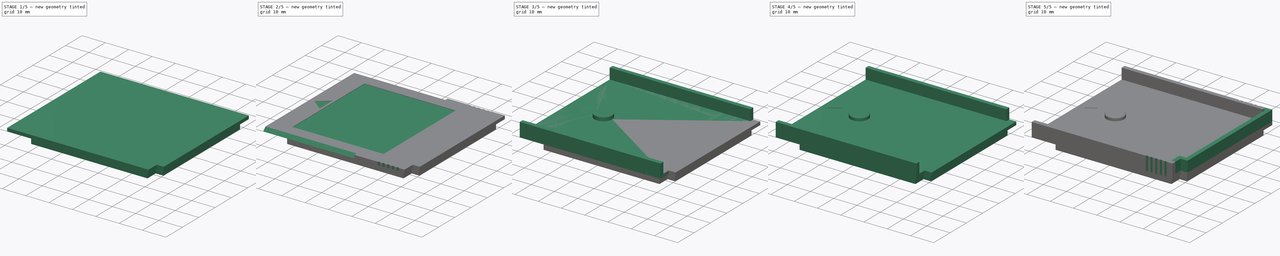
[diagram: build sequence overview — one tinted view per stage of 5, left to right]
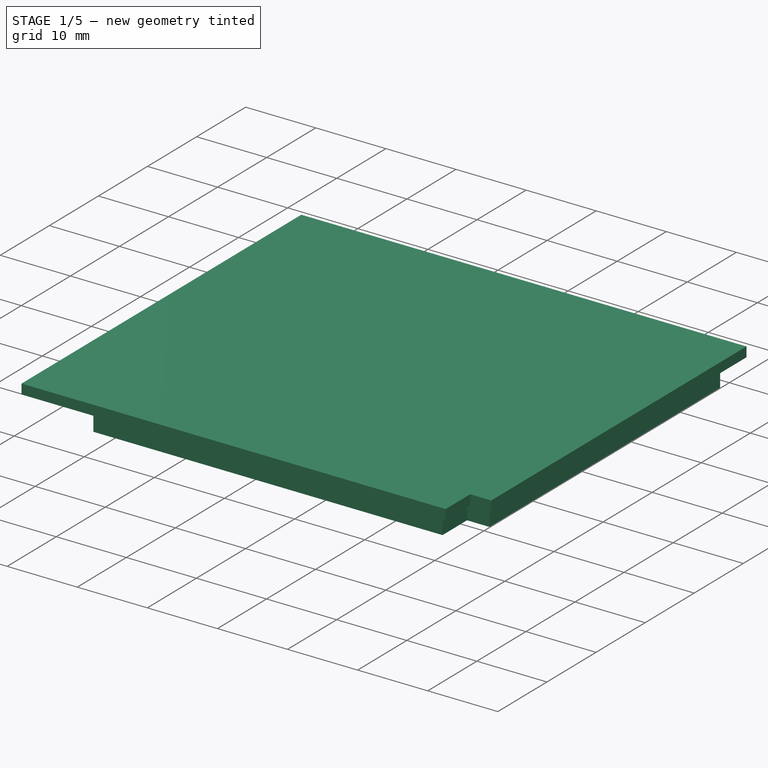
[diagram: stage 1 of 5 — iso view after this stage's code; geometry added in this stage tinted green]
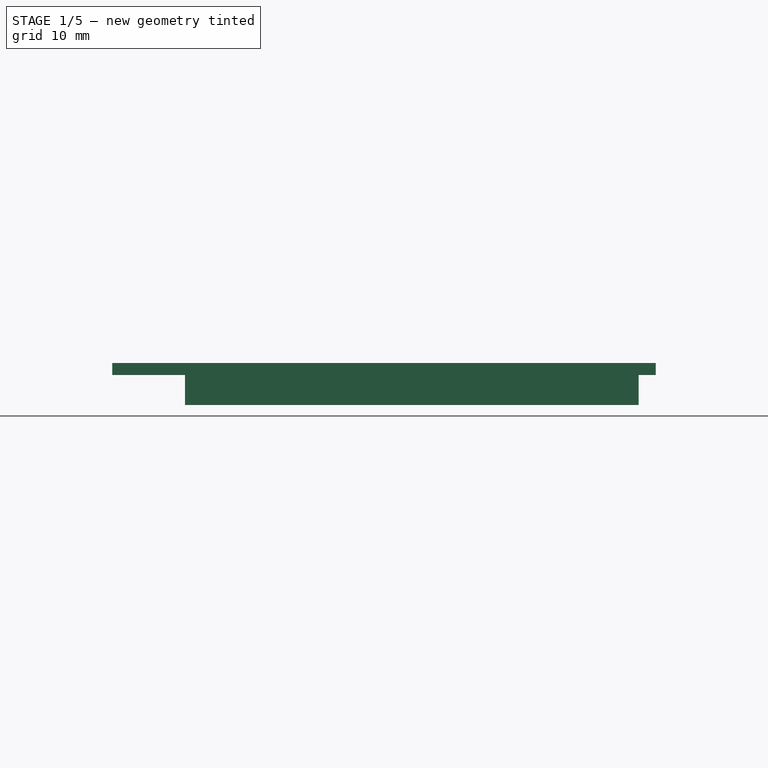
[diagram: stage 1 of 5 — front view after this stage's code; geometry added in this stage tinted green]
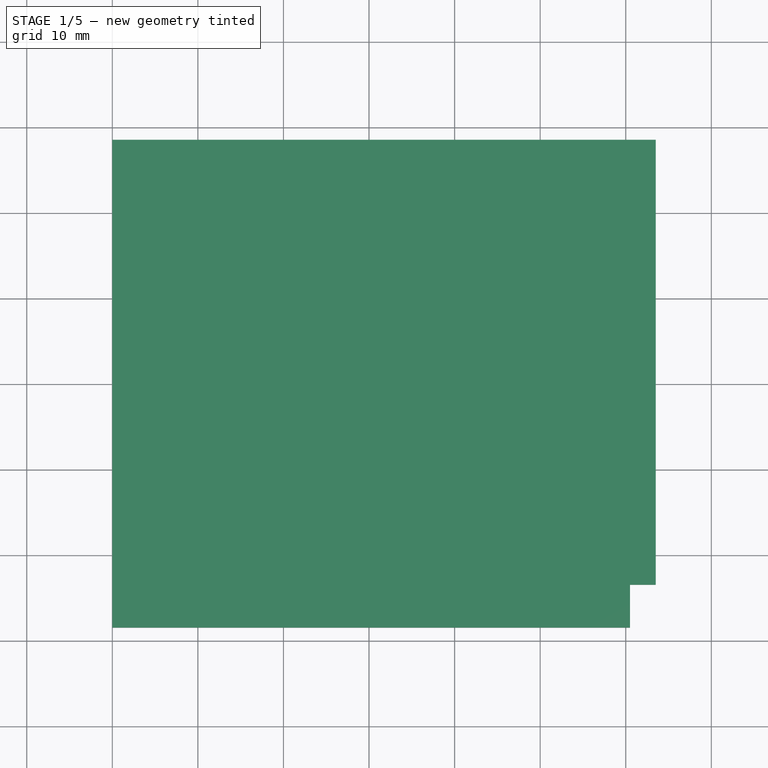
[diagram: stage 1 of 5 — top view after this stage's code; geometry added in this stage tinted green]
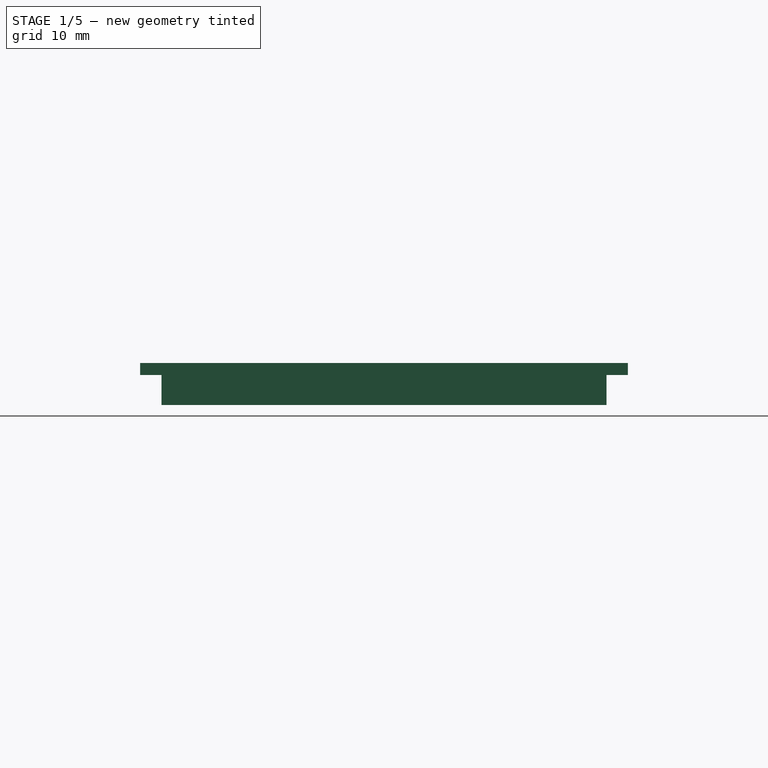
[diagram: stage 1 of 5 — right view after this stage's code; geometry added in this stage tinted green]
FCSTD DOCUMENT  (FreeCAD 0.21R33771 (Git))
Label: Cartridge
License: All rights reserved
LicenseURL: https://en.wikipedia.org/wiki/All_rights_reserved
objects: Sketcher::SketchObject×14, PartDesign::Pad×7, PartDesign::Pocket×7, PartDesign::Body×2, PartDesign::Fillet×1
note: 46 computed .brp shape members not serialized (recipe doc carries the construction recipe); baked Part::Feature solids carry a one-line shape summary decoded from their .brp

FEATURE [Sketcher::SketchObject] Sketch006
  FullyConstrained = true
  MapMode = 5
  Support = -> [XY_Plane001]
  sketch-geometry (6):
    g0: LineSegment StartX=0 StartY=28.5 StartZ=0 EndX=63.5 EndY=28.5 EndZ=0
    g1: LineSegment StartX=63.5 StartY=28.5 StartZ=0 EndX=63.5 EndY=-23.5 EndZ=0
    g2: LineSegment StartX=63.5 StartY=-23.5 StartZ=0 EndX=60.5 EndY=-23.5 EndZ=0
    g3: LineSegment StartX=60.5 StartY=-23.5 StartZ=0 EndX=60.5 EndY=-28.5 EndZ=0
    g4: LineSegment StartX=60.5 StartY=-28.5 StartZ=0 EndX=7.11e-14 EndY=-28.5 EndZ=0
    g5: LineSegment StartX=7.11e-14 StartY=-28.5 StartZ=0 EndX=0 EndY=28.5 EndZ=0
  constraints (17):
    c: PointOnObject(g0,g-2)
    c: Horizontal(g0)
    c: Coincident(g0,g1)
    c: Vertical(g1)
    c: Coincident(g1,g2)
    c: Horizontal(g2)
    c: Coincident(g2,g3)
    c: Vertical(g3)
    c: Coincident(g3,g4)
    c: Horizontal(g4)
    c: Coincident(g4,g5)
    c: Coincident(g5,g0)
    c: Symmetric(g4,g0,g-1)
    c: DistanceY(g5,g5) = 57
    c: DistanceX(g0,g0) = 63.5
    c: DistanceY(g3,g3) = 5
    c: DistanceX(g4,g4) = 60.5
FEATURE [PartDesign::Pad] Pad004
  Direction = (0,0,1)
  Length = 1.4
  Length2 = 10
  Profile = -> Sketch006
  ReferenceAxis = -> Sketch006 [N_Axis]
  Type = 0
FEATURE [Sketcher::SketchObject] Sketch007
  FullyConstrained = true
  MapMode = 5
  Placement = pos=(0,0,0) rot=(1,0,0;3.14159rad)
  Support = -> [Pad004]
  sketch-geometry (12):
    g0: LineSegment StartX=8.5 StartY=26 StartZ=0 EndX=58.3 EndY=26 EndZ=0
    g1: LineSegment StartX=58.3 StartY=26 StartZ=0 EndX=58.3 EndY=21 EndZ=0
    g2: LineSegment StartX=58.3 StartY=21 StartZ=0 EndX=61.5 EndY=21 EndZ=0
    g3: LineSegment StartX=61.5 StartY=21 StartZ=0 EndX=61.5 EndY=-26 EndZ=0
    g4: LineSegment StartX=61.5 StartY=-26 StartZ=0 EndX=8.5 EndY=-26 EndZ=0
    g5: LineSegment StartX=8.5 StartY=-26 StartZ=0 EndX=8.5 EndY=26 EndZ=0
    g6: LineSegment StartX=9.5 StartY=25 StartZ=0 EndX=57.3 EndY=25 EndZ=0
    g7: LineSegment StartX=57.3 StartY=25 StartZ=0 EndX=57.3 EndY=20 EndZ=0
    g8: LineSegment StartX=57.3 StartY=20 StartZ=0 EndX=60.5 EndY=20 EndZ=0
    g9: LineSegment StartX=60.5 StartY=20 StartZ=0 EndX=60.5 EndY=-25 EndZ=0
    g10: LineSegment StartX=60.5 StartY=-25 StartZ=0 EndX=9.5 EndY=-25 EndZ=0
    g11: LineSegment StartX=9.5 StartY=-25 StartZ=0 EndX=9.5 EndY=25 EndZ=0
  constraints (34):
    c: Horizontal(g0)
    c: Coincident(g0,g1)
    c: Vertical(g1)
    c: Coincident(g1,g2)
    c: Horizontal(g2)
    c: Coincident(g2,g3)
    c: Vertical(g3)
    c: Coincident(g3,g4)
    c: Horizontal(g4)
    c: Coincident(g4,g5)
    c: Coincident(g5,g0)
    c: Horizontal(g6)
    c: Coincident(g6,g7)
    c: Vertical(g7)
    c: Coincident(g7,g8)
    c: Coincident(g8,g9)
    c: Vertical(g9)
    c: Coincident(g9,g10)
    c: Horizontal(g10)
    c: Coincident(g10,g11)
    c: Coincident(g11,g6)
    c: Horizontal(g8)
    c: DistanceX(g0,g2) = 53
    c: DistanceY(g1,g1) = 5
    c: DistanceX(g0,g2) = 3.2
    c: DistanceY(g5,g5) = 52
    c: Symmetric(g0,g4,g-1)
    c: DistanceX(g-1,g0) = 8.5
    c: DistanceX(g0,g6) = 1
    c: Symmetric(g6,g10,g-1)
    c: DistanceY(g11,g11) = 50
    c: DistanceX(g9,g3) = 1
    c: DistanceX(g6,g0) = 1
    c: DistanceY(g8,g1) = 1
FEATURE [PartDesign::Pad] Pad005
  BaseFeature = -> Pad004
  Direction = (0,0,-1)
  Length = 3.5
  Length2 = 10
  Profile = -> Sketch007
  ReferenceAxis = -> Sketch007 [N_Axis]
  Type = 0
FEATURE [Sketcher::SketchObject] Sketch008
  FullyConstrained = true
  MapMode = 5
  Placement = pos=(0,0,0) rot=(1,0,0;3.14159rad)
  Support = -> [Pad005]
  sketch-geometry (1):
    g0: Circle CenterX=16 CenterY=0 CenterZ=0 NormalX=0 NormalY=0 NormalZ=1 AngleXU=0 Radius=2.5
  constraints (3):
    c: PointOnObject(g0,g-1)
    c: DistanceX(g-1,g0) = 16
    c: Radius(g0) = 2.5
FEATURE [PartDesign::Pad] Pad006
  BaseFeature = -> Pad005
  Direction = (0,0,-1)
  Length = 3
  Length2 = 10
  Profile = -> Sketch008
  ReferenceAxis = -> Sketch008 [N_Axis]
  Type = 0
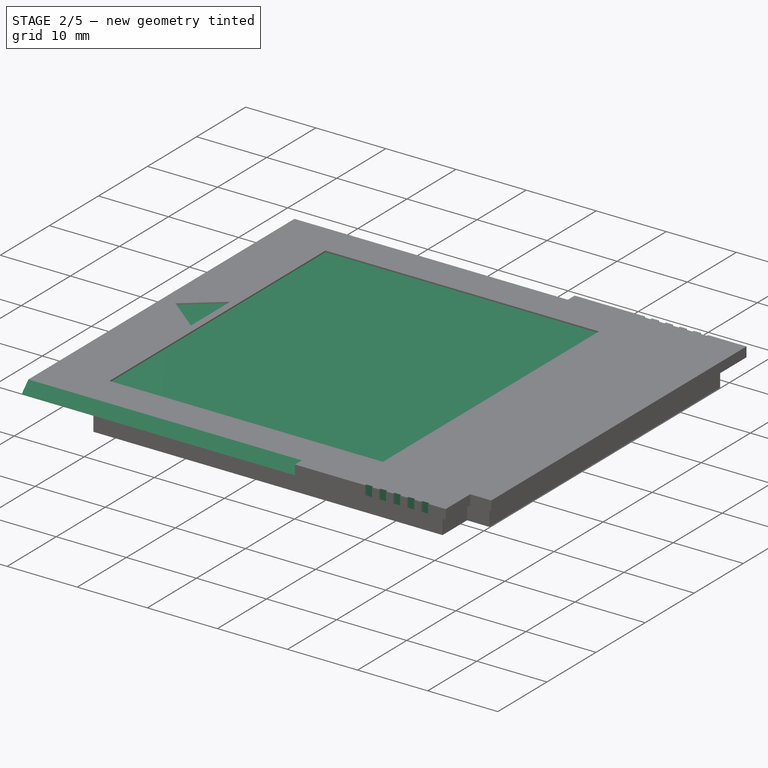
[diagram: stage 2 of 5 — iso view after this stage's code; geometry added in this stage tinted green]
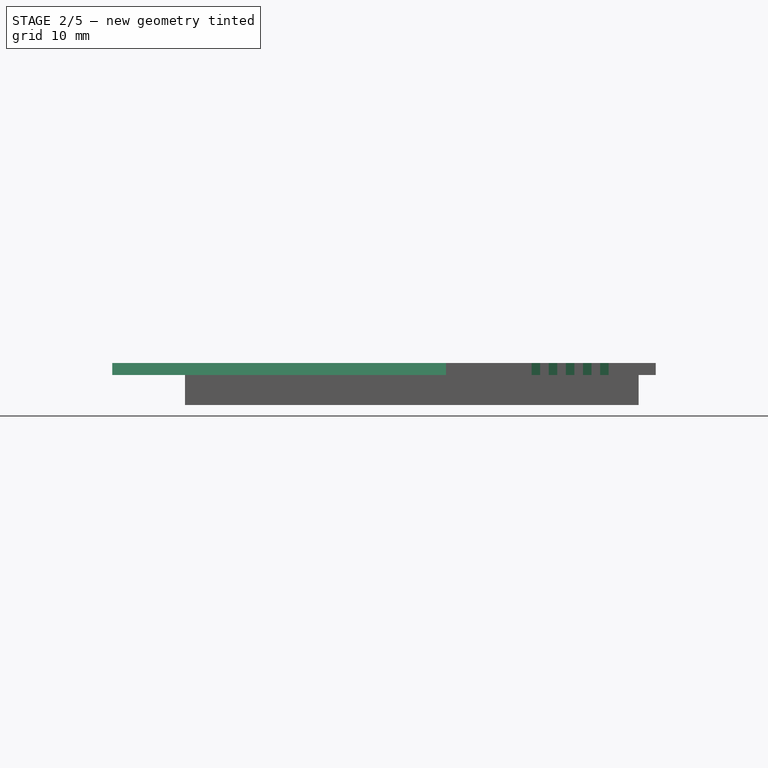
[diagram: stage 2 of 5 — front view after this stage's code; geometry added in this stage tinted green]
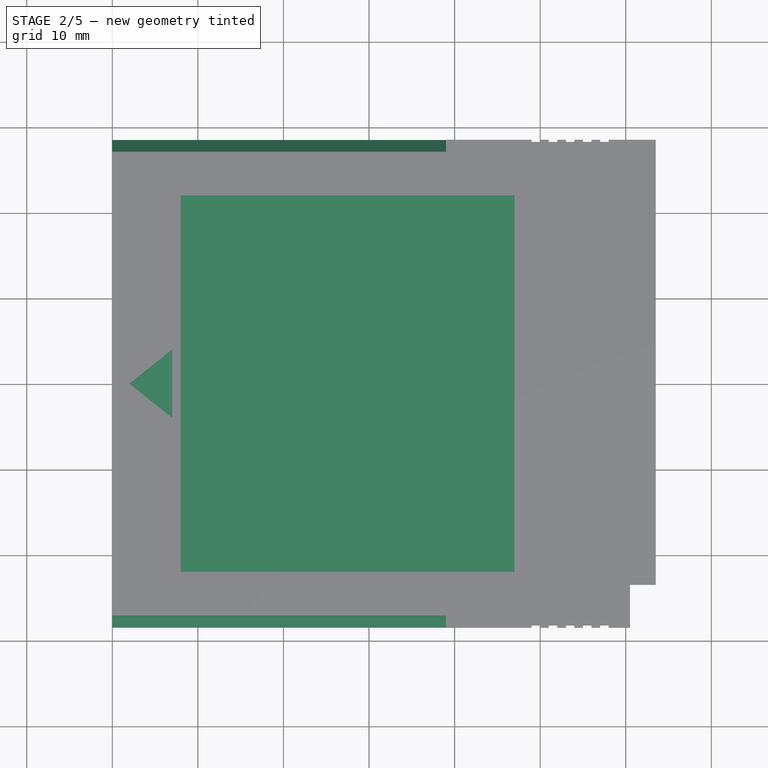
[diagram: stage 2 of 5 — top view after this stage's code; geometry added in this stage tinted green]
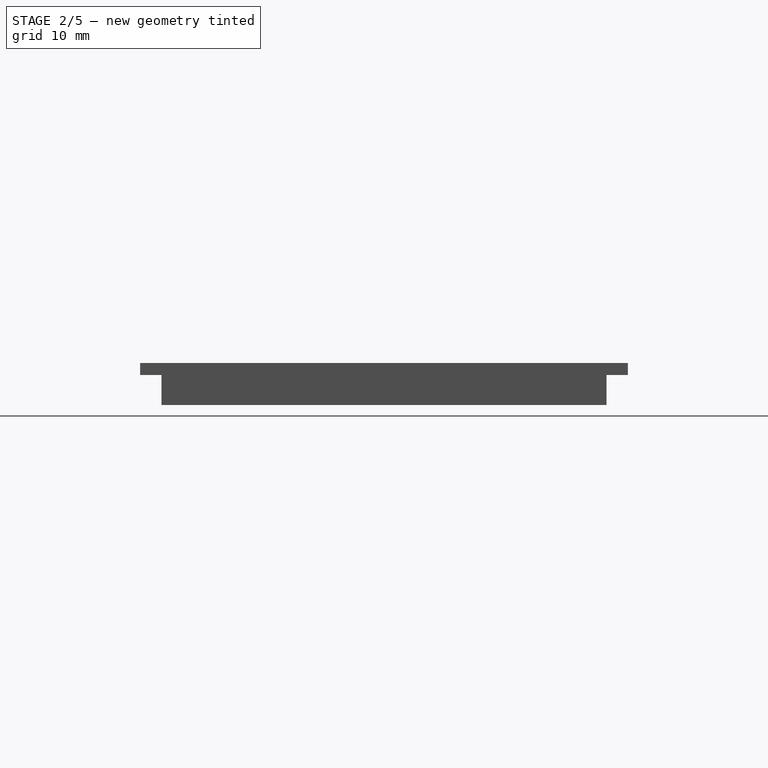
[diagram: stage 2 of 5 — right view after this stage's code; geometry added in this stage tinted green]
FEATURE [Sketcher::SketchObject] Sketch009
  FullyConstrained = true
  MapMode = 5
  Placement = pos=(0,0,1.4) rot=(0,0,1;0rad)
  Support = -> [Pad006]
  sketch-geometry (7):
    g0: LineSegment StartX=2 StartY=0 StartZ=0 EndX=7 EndY=4 EndZ=0
    g1: LineSegment StartX=7 StartY=4 StartZ=0 EndX=7 EndY=-4 EndZ=0
    g2: LineSegment StartX=7 StartY=-4 StartZ=0 EndX=2 EndY=0 EndZ=0
    g3: LineSegment StartX=8 StartY=22 StartZ=0 EndX=47 EndY=22 EndZ=0
    g4: LineSegment StartX=47 StartY=22 StartZ=0 EndX=47 EndY=-22 EndZ=0
    g5: LineSegment StartX=47 StartY=-22 StartZ=0 EndX=8 EndY=-22 EndZ=0
    g6: LineSegment StartX=8 StartY=-22 StartZ=0 EndX=8 EndY=22 EndZ=0
  constraints (20):
    c: PointOnObject(g0,g-1)
    c: Coincident(g0,g1)
    c: Vertical(g1)
    c: Coincident(g1,g2)
    c: Coincident(g2,g0)
    c: Equal(g0,g2)
    c: DistanceY(g1,g1) = 8
    c: DistanceX(g0,g0) = 5
    c: DistanceX(g-1,g0) = 2
    c: Coincident(g3,g4)
    c: Coincident(g4,g5)
    c: Coincident(g5,g6)
    c: Coincident(g6,g3)
    c: Horizontal(g3)
    c: Horizontal(g5)
    c: Vertical(g6)
    c: Symmetric(g3,g4,g-1)
    c: DistanceY(g4,g4) = 44
    c: DistanceX(g3,g3) = 39
    c: DistanceX(g0,g3) = 1
FEATURE [PartDesign::Pocket] Pocket002
  BaseFeature = -> Pad006
  Direction = (0,0,-1)
  Length = 0.2
  Length2 = 5
  Profile = -> Sketch009
  ReferenceAxis = -> Sketch009 [N_Axis]
  Type = 0
FEATURE [Sketcher::SketchObject] Sketch010
  FullyConstrained = true
  MapMode = 5
  Placement = pos=(3.54e-14,0,0) rot=(0.57735,-0.57735,-0.57735;2.0944rad)
  Support = -> [Pocket002]
  sketch-geometry (6):
    g0: LineSegment StartX=-28.5 StartY=0 StartZ=0 EndX=-27.1 EndY=1.4 EndZ=0
    g1: LineSegment StartX=-27.1 StartY=1.4 StartZ=0 EndX=-28.5 EndY=1.4 EndZ=0
    g2: LineSegment StartX=-28.5 StartY=1.4 StartZ=0 EndX=-28.5 EndY=0 EndZ=0
    g3: LineSegment StartX=27.1 StartY=1.4 StartZ=0 EndX=28.5 EndY=0 EndZ=0
    g4: LineSegment StartX=28.5 StartY=0 StartZ=0 EndX=28.5 EndY=1.4 EndZ=0
    g5: LineSegment StartX=28.5 StartY=1.4 StartZ=0 EndX=27.1 EndY=1.4 EndZ=0
  constraints (17):
    c: PointOnObject(g0,g-1)
    c: Coincident(g0,g1)
    c: Horizontal(g1)
    c: Coincident(g1,g2)
    c: Coincident(g2,g0)
    c: Vertical(g2)
    c: PointOnObject(g3,g-1)
    c: Coincident(g3,g4)
    c: Coincident(g4,g5)
    c: Coincident(g5,g3)
    c: Vertical(g4)
    c: Horizontal(g5)
    c: Symmetric(g4,g1,g-2)
    c: Equal(g2,g1)
    c: Equal(g1,g5)
    c: DistanceX(g1,g4) = 57
    c: DistanceY(g4,g4) = 1.4
FEATURE [PartDesign::Pocket] Pocket003
  BaseFeature = -> Pocket002
  Direction = (1,1.3e-15,0)
  Length = 39
  Length2 = 5
  Profile = -> Sketch010
  ReferenceAxis = -> Sketch010 [N_Axis]
  Type = 0
FEATURE [PartDesign::Body] Body  label="Base"
  Group = -> [Sketch,Pad,Sketch001,Pad001,Fillet,Sketch002,Pocket,Sketch003,Pad002,Sketch004,Pad003,Sketch005,Pocket001,Sketch011,Pocket004]
  Origin = -> Origin
  Tip = -> Pocket004
FEATURE [Sketcher::SketchObject] Sketch012
  FullyConstrained = true
  MapMode = 5
  Placement = pos=(0,0,1.4) rot=(0,0,1;0rad)
  Support = -> [Pocket003]
  sketch-geometry (41):
    g0: LineSegment StartX=58 StartY=31.25 StartZ=0 EndX=58 EndY=28.25 EndZ=0
    g1: LineSegment StartX=58 StartY=28.25 StartZ=0 EndX=57 EndY=28.25 EndZ=0
    g2: LineSegment StartX=57 StartY=28.25 StartZ=0 EndX=57 EndY=30.25 EndZ=0
    g3: LineSegment StartX=57 StartY=30.25 StartZ=0 EndX=56 EndY=30.25 EndZ=0
    g4: LineSegment StartX=56 StartY=30.25 StartZ=0 EndX=56 EndY=28.25 EndZ=0
    g5: LineSegment StartX=56 StartY=28.25 StartZ=0 EndX=55 EndY=28.25 EndZ=0
    g6: LineSegment StartX=55 StartY=28.25 StartZ=0 EndX=55 EndY=30.25 EndZ=0
    g7: LineSegment StartX=55 StartY=30.25 StartZ=0 EndX=54 EndY=30.25 EndZ=0
    g8: LineSegment StartX=54 StartY=30.25 StartZ=0 EndX=54 EndY=28.25 EndZ=0
    g9: LineSegment StartX=54 StartY=28.25 StartZ=0 EndX=53 EndY=28.25 EndZ=0
    g10: LineSegment StartX=53 StartY=28.25 StartZ=0 EndX=53 EndY=30.25 EndZ=0
    g11: LineSegment StartX=53 StartY=30.25 StartZ=0 EndX=52 EndY=30.25 EndZ=0
    g12: LineSegment StartX=52 StartY=30.25 StartZ=0 EndX=52 EndY=28.25 EndZ=0
    g13: LineSegment StartX=52 StartY=28.25 StartZ=0 EndX=51 EndY=28.25 EndZ=0
    g14: LineSegment StartX=51 StartY=28.25 StartZ=0 EndX=51 EndY=30.25 EndZ=0
    g15: LineSegment StartX=51 StartY=30.25 StartZ=0 EndX=50 EndY=30.25 EndZ=0
    g16: LineSegment StartX=50 StartY=30.25 StartZ=0 EndX=50 EndY=28.25 EndZ=0
    g17: LineSegment StartX=50 StartY=28.25 StartZ=0 EndX=49 EndY=28.25 EndZ=0
    g18: LineSegment StartX=49 StartY=28.25 StartZ=0 EndX=49 EndY=31.25 EndZ=0
    g19: LineSegment StartX=49 StartY=31.25 StartZ=0 EndX=58 EndY=31.25 EndZ=0
    g20: LineSegment StartX=58 StartY=-31.25 StartZ=0 EndX=58 EndY=-28.25 EndZ=0
    g21: LineSegment StartX=58 StartY=-28.25 StartZ=0 EndX=57 EndY=-28.25 EndZ=0
    g22: LineSegment StartX=57 StartY=-28.25 StartZ=0 EndX=57 EndY=-30.25 EndZ=0
    g23: LineSegment StartX=57 StartY=-30.25 StartZ=0 EndX=56 EndY=-30.25 EndZ=0
    g24: LineSegment StartX=56 StartY=-30.25 StartZ=0 EndX=56 EndY=-28.25 EndZ=0
    g25: LineSegment StartX=56 StartY=-28.25 StartZ=0 EndX=55 EndY=-28.25 EndZ=0
    g26: LineSegment StartX=55 StartY=-28.25 StartZ=0 EndX=55 EndY=-30.25 EndZ=0
    g27: LineSegment StartX=55 StartY=-30.25 StartZ=0 EndX=54 EndY=-30.25 EndZ=0
    g28: LineSegment StartX=54 StartY=-30.25 StartZ=0 EndX=54 EndY=-28.25 EndZ=0
    g29: LineSegment StartX=54 StartY=-28.25 StartZ=0 EndX=53 EndY=-28.25 EndZ=0
    g30: LineSegment StartX=53 StartY=-28.25 StartZ=0 EndX=53 EndY=-30.25 EndZ=0
    g31: LineSegment StartX=53 StartY=-30.25 StartZ=0 EndX=52 EndY=-30.25 EndZ=0
    g32: LineSegment StartX=52 StartY=-30.25 StartZ=0 EndX=52 EndY=-28.25 EndZ=0
    g33: LineSegment StartX=52 StartY=-28.25 StartZ=0 EndX=51 EndY=-28.25 EndZ=0
    g34: LineSegment StartX=51 StartY=-28.25 StartZ=0 EndX=51 EndY=-30.25 EndZ=0
    g35: LineSegment StartX=51 StartY=-30.25 StartZ=0 EndX=50 EndY=-30.25 EndZ=0
    g36: LineSegment StartX=50 StartY=-30.25 StartZ=0 EndX=50 EndY=-28.25 EndZ=0
    g37: LineSegment StartX=50 StartY=-28.25 StartZ=0 EndX=49 EndY=-28.25 EndZ=0
    g38: LineSegment StartX=49 StartY=-28.25 StartZ=0 EndX=49 EndY=-31.25 EndZ=0
    g39: LineSegment StartX=49 StartY=-31.25 StartZ=0 EndX=58 EndY=-31.25 EndZ=0
    g40: LineSegment StartX=58 StartY=28.25 StartZ=0 EndX=58 EndY=-28.25 EndZ=0
  constraints (121):
    c: Vertical(g0)
    c: Coincident(g0,g1)
    c: Coincident(g1,g2)
    c: Vertical(g2)
    c: Coincident(g2,g3)
    c: Horizontal(g3)
    c: Coincident(g3,g4)
    c: Vertical(g4)
    c: Coincident(g4,g5)
    c: Coincident(g5,g6)
    c: Vertical(g6)
    c: Coincident(g6,g7)
    c: Horizontal(g7)
    c: Coincident(g7,g8)
    c: Vertical(g8)
    c: Coincident(g8,g9)
    c: Horizontal(g9)
    c: Coincident(g9,g10)
    c: Vertical(g10)
    c: Coincident(g10,g11)
    c: Horizontal(g11)
    c: Coincident(g11,g12)
    c: Vertical(g12)
    c: Coincident(g12,g13)
    c: Horizontal(g13)
    c: Coincident(g13,g14)
    c: Vertical(g14)
    c: Coincident(g14,g15)
    c: Horizontal(g15)
    c: Coincident(g15,g16)
    c: Vertical(g16)
    c: Coincident(g16,g17)
    c: Coincident(g17,g18)
    c: Vertical(g18)
    c: Coincident(g18,g19)
    c: Coincident(g19,g0)
    c: Horizontal(g19)
    c: Horizontal(g5)
    c: Horizontal(g1)
    c: Horizontal(g17)
    c: Equal(g2,g4)
    c: Equal(g4,g6)
    c: Equal(g6,g8)
    c: Equal(g8,g10)
    c: Equal(g10,g12)
    c: Equal(g12,g14)
    c: Equal(g14,g16)
    c: Equal(g17,g15)
    c: Equal(g15,g13)
    c: Equal(g13,g11)
    c: Equal(g11,g9)
    c: Equal(g9,g7)
    c: Equal(g7,g5)
    c: Equal(g5,g3)
    c: Equal(g3,g1)
    c: DistanceX(g1,g1) = 1
    c: DistanceY(g2,g0) = 1
    c: DistanceY(g0,g0) = 3
    c: Vertical(g20)
    c: Coincident(g20,g21)
    c: Coincident(g21,g22)
    c: Vertical(g22)
    c: Coincident(g22,g23)
    c: Horizontal(g23)
    c: Coincident(g23,g24)
    c: Vertical(g24)
    c: Coincident(g24,g25)
    c: Coincident(g25,g26)
    c: Vertical(g26)
    c: Coincident(g26,g27)
    c: Horizontal(g27)
    c: Coincident(g27,g28)
    c: Vertical(g28)
    c: Coincident(g28,g29)
    c: Horizontal(g29)
    c: Coincident(g29,g30)
    c: Vertical(g30)
    c: Coincident(g30,g31)
    c: Horizontal(g31)
    c: Coincident(g31,g32)
    c: Vertical(g32)
    c: Coincident(g32,g33)
    c: Horizontal(g33)
    c: Coincident(g33,g34)
    c: Vertical(g34)
    c: Coincident(g34,g35)
    c: Horizontal(g35)
    c: Coincident(g35,g36)
    c: Vertical(g36)
    c: Coincident(g36,g37)
    c: Horizontal(g37)
    c: Coincident(g37,g38)
    c: Vertical(g38)
    c: Coincident(g38,g39)
    c: Coincident(g39,g20)
    c: Horizontal(g39)
    c: Horizontal(g21)
    c: Horizontal(g25)
    c: Equal(g36,g34)
    c: Equal(g34,g32)
    c: Equal(g32,g30)
    c: Equal(g30,g28)
    c: Equal(g28,g26)
    c: Equal(g26,g24)
    c: Equal(g24,g22)
    c: Equal(g21,g23)
    c: Equal(g23,g25)
    c: Equal(g25,g27)
    c: Equal(g27,g29)
    c: Equal(g29,g31)
    c: Equal(g31,g33)
    c: Equal(g33,g35)
    c: Equal(g35,g37)
    c: DistanceY(g38,g38) = 3
    c: DistanceY(g20,g22) = 1
    c: Coincident(g40,g0)
    c: Coincident(g40,g20)
    c: DistanceX(g-1,g20) = 58
    c: Symmetric(g0,g20,g-1)
    c: DistanceY(g40,g40) = 56.5
    c: DistanceX(g37,g37) = 1
FEATURE [PartDesign::Pocket] Pocket005
  BaseFeature = -> Pocket003
  Direction = (0,0,-1)
  Length = 1.5
  Length2 = 5
  Profile = -> Sketch012
  ReferenceAxis = -> Sketch012 [N_Axis]
  Type = 0
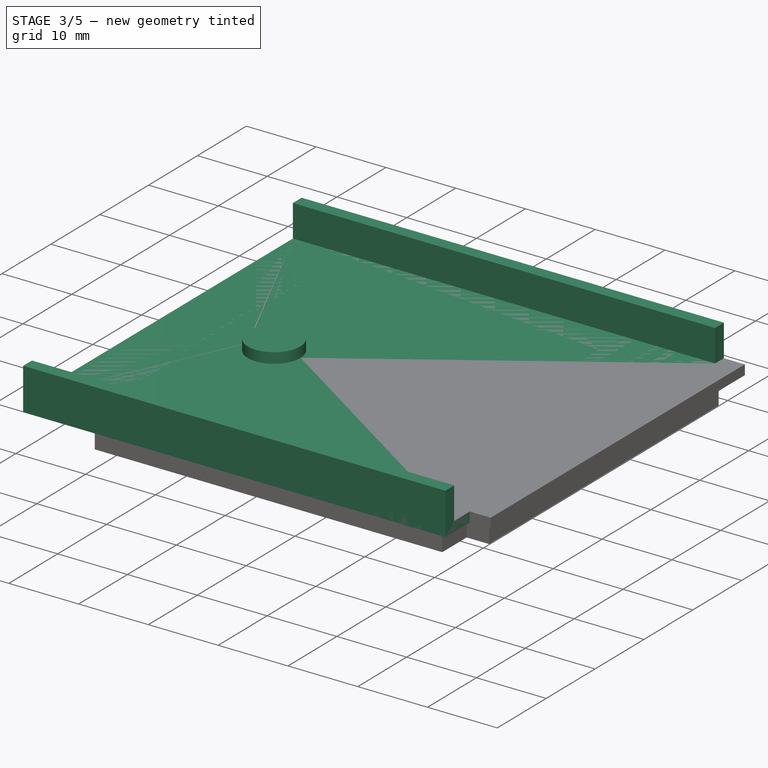
[diagram: stage 3 of 5 — iso view after this stage's code; geometry added in this stage tinted green]
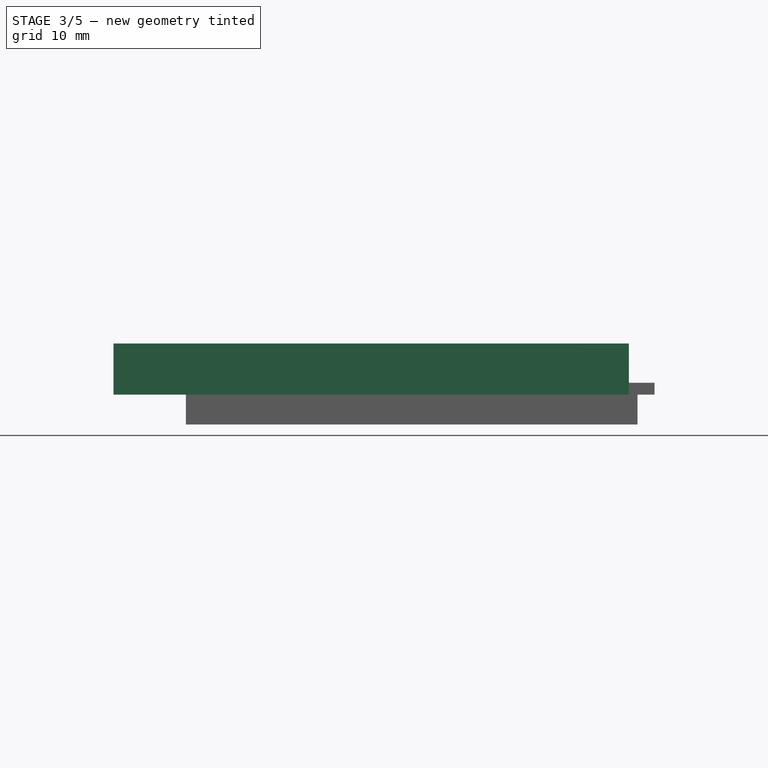
[diagram: stage 3 of 5 — front view after this stage's code; geometry added in this stage tinted green]
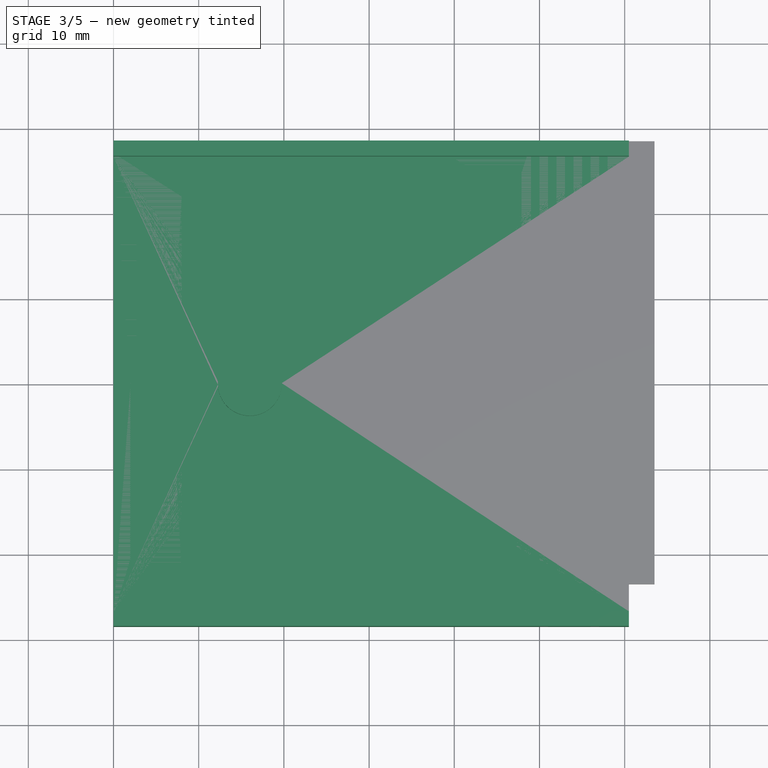
[diagram: stage 3 of 5 — top view after this stage's code; geometry added in this stage tinted green]
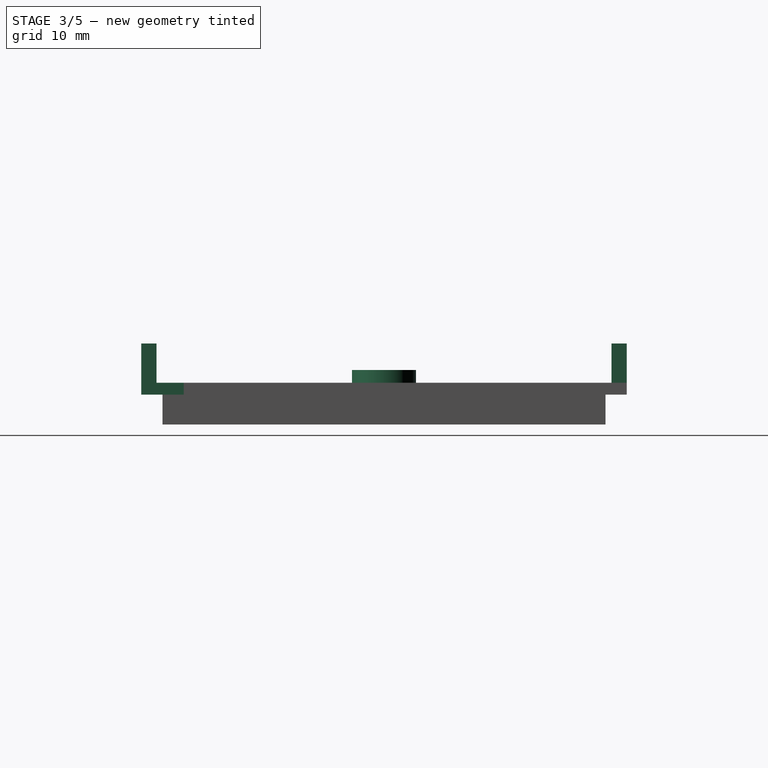
[diagram: stage 3 of 5 — right view after this stage's code; geometry added in this stage tinted green]
FEATURE [Sketcher::SketchObject] Sketch
  FullyConstrained = true
  MapMode = 5
  Placement = pos=(0,0,0) rot=(0.57735,0.57735,0.57735;2.0944rad)
  Support = -> [YZ_Plane]
  sketch-geometry (8):
    g0: LineSegment StartX=-28.5 StartY=0 StartZ=0 EndX=-28.5 EndY=6 EndZ=0
    g1: LineSegment StartX=-28.5 StartY=6 StartZ=0 EndX=-26.7 EndY=6 EndZ=0
    g2: LineSegment StartX=-26.7 StartY=6 StartZ=0 EndX=-26.7 EndY=1.4 EndZ=0
    g3: LineSegment StartX=-26.7 StartY=1.4 StartZ=0 EndX=26.7 EndY=1.4 EndZ=0
    g4: LineSegment StartX=26.7 StartY=1.4 StartZ=0 EndX=26.7 EndY=6 EndZ=0
    g5: LineSegment StartX=26.7 StartY=6 StartZ=0 EndX=28.5 EndY=6 EndZ=0
    g6: LineSegment StartX=28.5 StartY=6 StartZ=0 EndX=28.5 EndY=0 EndZ=0
    g7: LineSegment StartX=28.5 StartY=0 StartZ=0 EndX=-28.5 EndY=0 EndZ=0
  constraints (22):
    c: PointOnObject(g0,g-1)
    c: Coincident(g0,g1)
    c: Horizontal(g1)
    c: Coincident(g1,g2)
    c: Coincident(g2,g3)
    c: Coincident(g3,g4)
    c: Coincident(g4,g5)
    c: Coincident(g5,g6)
    c: Vertical(g6)
    c: Coincident(g6,g7)
    c: Coincident(g7,g0)
    c: Symmetric(g0,g6,g-2)
    c: Horizontal(g5)
    c: Vertical(g4)
    c: Symmetric(g2,g3,g-2)
    c: DistanceY(g0,g2) = 1.4
    c: Vertical(g2)
    c: DistanceX(g5,g5) = 1.8
    c: Vertical(g0)
    c: DistanceX(g7,g7) = 57
    c: DistanceY(g0,g0) = 6
    c: Equal(g4,g2)
FEATURE [PartDesign::Pad] Pad
  Direction = (1,-2e-16,3e-16)
  Length = 60.5
  Length2 = 10
  Placement = pos=(0,0,0) rot=(0.57735,0.57735,0.57735;2.0944rad)
  Profile = -> Sketch
  ReferenceAxis = -> Sketch [N_Axis]
  Type = 0
FEATURE [Sketcher::SketchObject] Sketch001
  FullyConstrained = true
  MapMode = 5
  Placement = pos=(-4e-16,6e-16,1.4) rot=(0,0,-1;1.5708rad)
  Support = -> [Pad]
  sketch-geometry (1):
    g0: Circle CenterX=0 CenterY=16 CenterZ=0 NormalX=0 NormalY=0 NormalZ=1 AngleXU=0 Radius=3.75
  constraints (3):
    c: PointOnObject(g0,g-2)
    c: Radius(g0) = 3.75
    c: DistanceY(g-1,g0) = 16
FEATURE [PartDesign::Pad] Pad001
  BaseFeature = -> Pad
  Direction = (-4e-16,6e-16,1)
  Length = 1.5
  Length2 = 10
  Placement = pos=(0,0,0) rot=(0.57735,0.57735,0.57735;2.0944rad)
  Profile = -> Sketch001
  ReferenceAxis = -> Sketch001 [N_Axis]
  Type = 0
FEATURE [Sketcher::SketchObject] Sketch013
  FullyConstrained = true
  MapMode = 5
  Placement = pos=(0,0,1.4) rot=(0,0,1;0rad)
  Support = -> [Pocket005]
  sketch-geometry (24):
    g0: LineSegment StartX=49 StartY=28.25 StartZ=0 EndX=50 EndY=28.25 EndZ=0
    g1: LineSegment StartX=50 StartY=28.25 StartZ=0 EndX=50 EndY=-28.25 EndZ=0
    g2: LineSegment StartX=50 StartY=-28.25 StartZ=0 EndX=49 EndY=-28.25 EndZ=0
    g3: LineSegment StartX=49 StartY=-28.25 StartZ=0 EndX=49 EndY=28.25 EndZ=0
    g4: LineSegment StartX=51 StartY=28.25 StartZ=0 EndX=52 EndY=28.25 EndZ=0
    g5: LineSegment StartX=52 StartY=28.25 StartZ=0 EndX=52 EndY=-28.25 EndZ=0
    g6: LineSegment StartX=52 StartY=-28.25 StartZ=0 EndX=51 EndY=-28.25 EndZ=0
    g7: LineSegment StartX=51 StartY=-28.25 StartZ=0 EndX=51 EndY=28.25 EndZ=0
    g8: LineSegment StartX=53 StartY=28.25 StartZ=0 EndX=54 EndY=28.25 EndZ=0
    g9: LineSegment StartX=54 StartY=28.25 StartZ=0 EndX=54 EndY=-28.25 EndZ=0
    g10: LineSegment StartX=54 StartY=-28.25 StartZ=0 EndX=53 EndY=-28.25 EndZ=0
    g11: LineSegment StartX=53 StartY=-28.25 StartZ=0 EndX=53 EndY=28.25 EndZ=0
    g12: LineSegment StartX=55 StartY=28.25 StartZ=0 EndX=56 EndY=28.25 EndZ=0
    g13: LineSegment StartX=56 StartY=28.25 StartZ=0 EndX=56 EndY=-28.25 EndZ=0
    g14: LineSegment StartX=56 StartY=-28.25 StartZ=0 EndX=55 EndY=-28.25 EndZ=0
    g15: LineSegment StartX=55 StartY=-28.25 StartZ=0 EndX=55 EndY=28.25 EndZ=0
    g16: LineSegment StartX=57 StartY=28.25 StartZ=0 EndX=58 EndY=28.25 EndZ=0
    g17: LineSegment StartX=58 StartY=28.25 StartZ=0 EndX=58 EndY=-28.25 EndZ=0
    g18: LineSegment StartX=58 StartY=-28.25 StartZ=0 EndX=57 EndY=-28.25 EndZ=0
    g19: LineSegment StartX=57 StartY=-28.25 StartZ=0 EndX=57 EndY=28.25 EndZ=0
    g20: LineSegment StartX=57 StartY=28.25 StartZ=0 EndX=56 EndY=28.25 EndZ=0
    g21: LineSegment StartX=55 StartY=28.25 StartZ=0 EndX=54 EndY=28.25 EndZ=0
    g22: LineSegment StartX=53 StartY=28.25 StartZ=0 EndX=52 EndY=28.25 EndZ=0
    g23: LineSegment StartX=51 StartY=28.25 StartZ=0 EndX=50 EndY=28.25 EndZ=0
  constraints (67):
    c: Coincident(g0,g1)
    c: Coincident(g1,g2)
    c: Coincident(g2,g3)
    c: Coincident(g3,g0)
    c: Horizontal(g0)
    c: Horizontal(g2)
    c: Vertical(g1)
    c: Vertical(g3)
    c: Coincident(g4,g5)
    c: Coincident(g5,g6)
    c: Coincident(g6,g7)
    c: Coincident(g7,g4)
    c: Horizontal(g4)
    c: Horizontal(g6)
    c: Vertical(g5)
    c: Vertical(g7)
    c: Coincident(g8,g9)
    c: Coincident(g9,g10)
    c: Coincident(g10,g11)
    c: Coincident(g11,g8)
    c: Horizontal(g8)
    c: Horizontal(g10)
    c: Vertical(g9)
    c: Vertical(g11)
    c: Coincident(g12,g13)
    c: Coincident(g13,g14)
    c: Coincident(g14,g15)
    c: Coincident(g15,g12)
    c: Horizontal(g12)
    c: Horizontal(g14)
    c: Vertical(g13)
    c: Vertical(g15)
    c: Equal(g4,g0)
    c: Equal(g0,g8)
    c: Equal(g8,g12)
    c: DistanceX(g0,g0) = 1
    c: Coincident(g16,g17)
    c: Coincident(g17,g18)
    c: Coincident(g18,g19)
    c: Coincident(g19,g16)
    c: Horizontal(g16)
    c: Horizontal(g18)
    c: Vertical(g19)
    c: Equal(g16,g12)
    c: Equal(g3,g7)
    c: Equal(g7,g11)
    c: Equal(g11,g15)
    c: Equal(g15,g19)
    c: Symmetric(g16,g17,g-1)
    c: DistanceY(g17,g17) = 56.5
    c: Coincident(g20,g16)
    c: Coincident(g20,g12)
    c: Coincident(g21,g12)
    c: Coincident(g21,g8)
    c: Coincident(g22,g8)
    c: Coincident(g22,g4)
    c: Coincident(g23,g4)
    c: Coincident(g23,g0)
    c: Horizontal(g23)
    c: Horizontal(g22)
    c: Horizontal(g21)
    c: Horizontal(g20)
    c: Equal(g23,g22)
    c: Equal(g22,g21)
    c: Equal(g21,g20)
    c: Equal(g23,g0)
    c: DistanceX(g-1,g16) = 58
FEATURE [PartDesign::Pocket] Pocket006
  BaseFeature = -> Pocket005
  Direction = (0,0,-1)
  Length = 0.2
  Length2 = 5
  Profile = -> Sketch013
  ReferenceAxis = -> Sketch013 [N_Axis]
  Type = 0
FEATURE [PartDesign::Body] Body001  label="Lid"
  Group = -> [Sketch006,Pad004,Sketch007,Pad005,Sketch008,Pad006,Sketch009,Pocket002,Sketch010,Pocket003,Sketch012,Pocket005,Sketch013,Pocket006]
  Origin = -> Origin001
  Placement = pos=(0,0,6) rot=(0,0,1;0rad)
  Tip = -> Pocket006
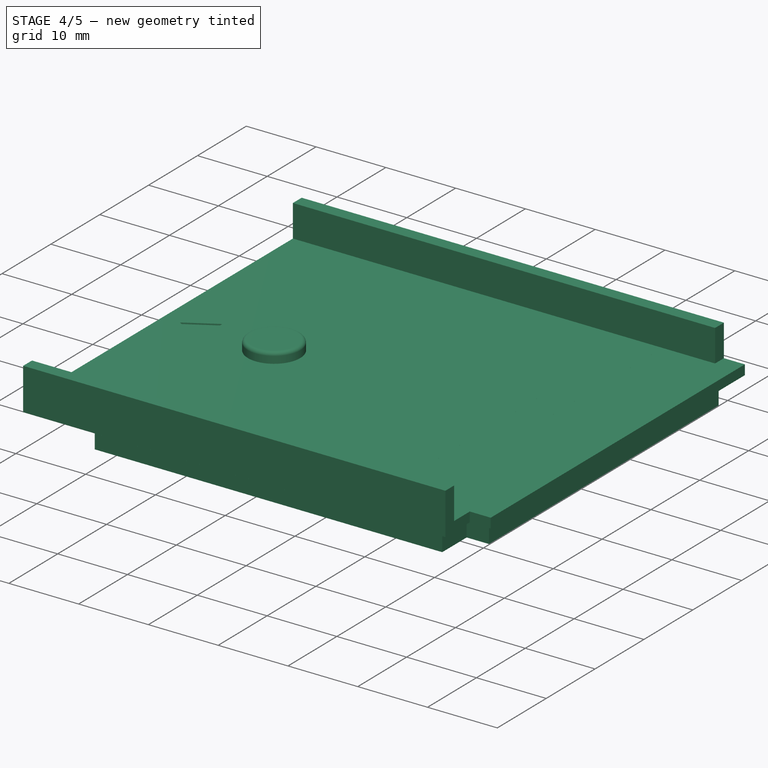
[diagram: stage 4 of 5 — iso view after this stage's code; geometry added in this stage tinted green]
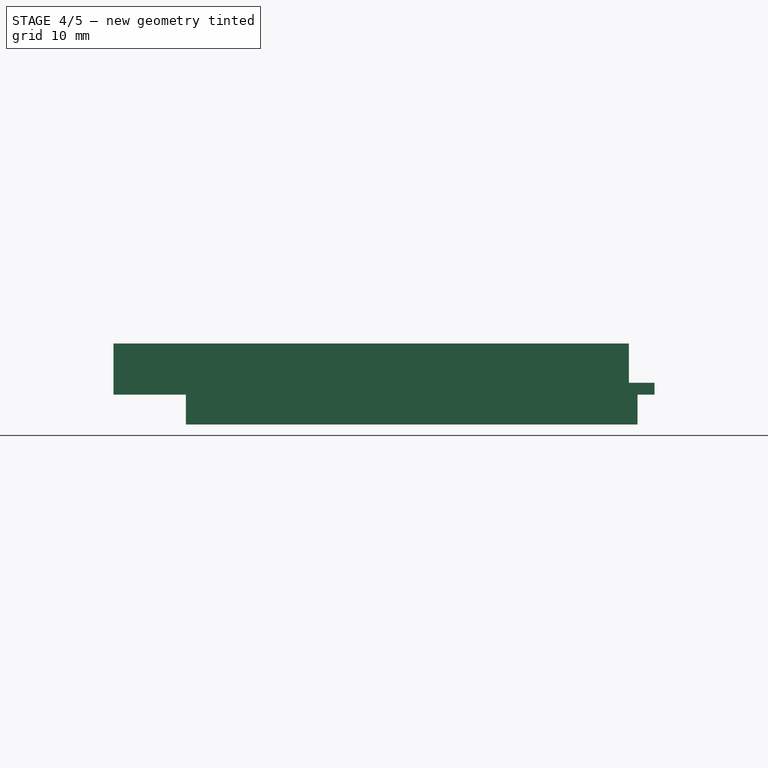
[diagram: stage 4 of 5 — front view after this stage's code; geometry added in this stage tinted green]
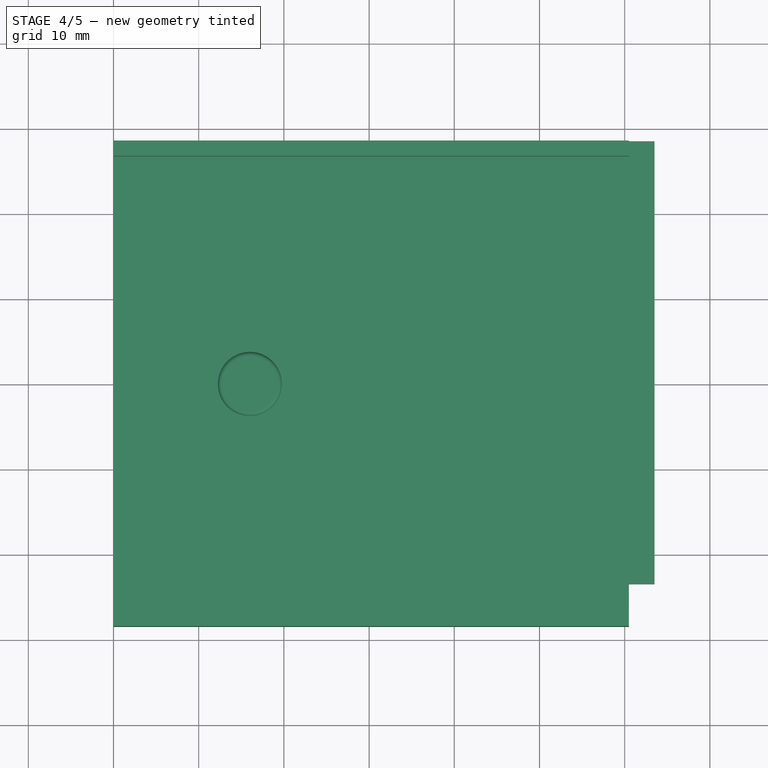
[diagram: stage 4 of 5 — top view after this stage's code; geometry added in this stage tinted green]
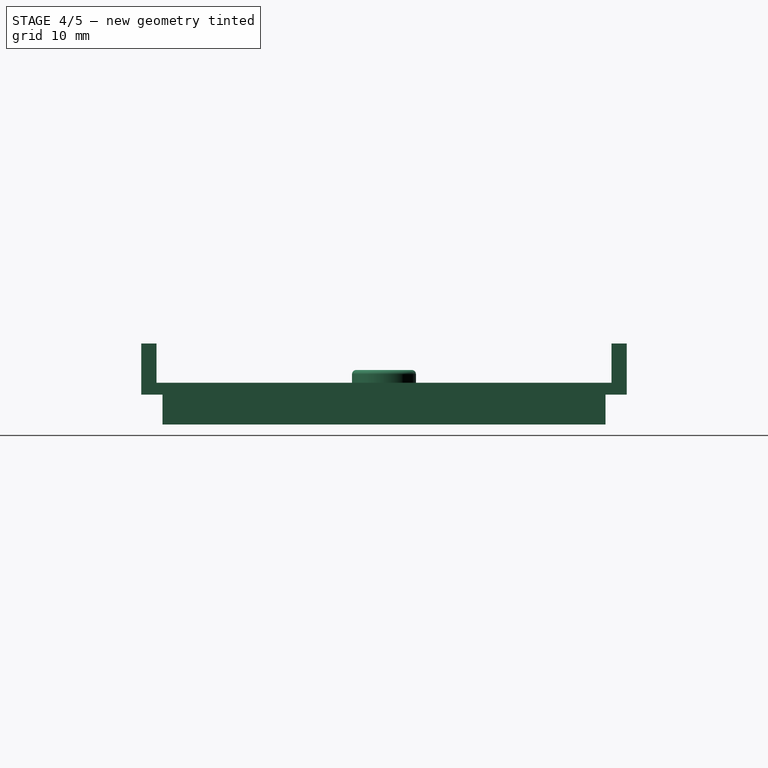
[diagram: stage 4 of 5 — right view after this stage's code; geometry added in this stage tinted green]
FEATURE [PartDesign::Fillet] Fillet
  Base = -> Pad001 [Edge27]
  BaseFeature = -> Pad001
  Placement = pos=(0,0,0) rot=(0.57735,0.57735,0.57735;2.0944rad)
  Radius = 0.5
  SupportTransform = false
  UseAllEdges = false
FEATURE [Sketcher::SketchObject] Sketch002
  FullyConstrained = true
  MapMode = 5
  Placement = pos=(-4e-16,6e-16,1.4) rot=(0,0,-1;1.5708rad)
  Support = -> [Fillet]
  sketch-geometry (3):
    g0: LineSegment StartX=0 StartY=2.5 StartZ=0 EndX=-2.5 EndY=6.83013 EndZ=0
    g1: LineSegment StartX=-2.5 StartY=6.83013 StartZ=0 EndX=2.5 EndY=6.83013 EndZ=0
    g2: LineSegment StartX=2.5 StartY=6.83013 StartZ=0 EndX=0 EndY=2.5 EndZ=0
  constraints (8):
    c: PointOnObject(g0,g-2)
    c: Coincident(g0,g1)
    c: Coincident(g1,g2)
    c: Coincident(g2,g0)
    c: Symmetric(g1,g0,g-2)
    c: Equal(g1,g2)
    c: DistanceY(g-1,g0) = 2.5
    c: DistanceX(g1,g1) = 5
FEATURE [PartDesign::Pocket] Pocket
  BaseFeature = -> Fillet
  Direction = (7e-16,-7e-16,-1)
  Length = 0.2
  Length2 = 5
  Placement = pos=(0,0,0) rot=(0.57735,0.57735,0.57735;2.0944rad)
  Profile = -> Sketch002
  ReferenceAxis = -> Sketch002 [N_Axis]
  Type = 0
FEATURE [Sketcher::SketchObject] Sketch003
  FullyConstrained = true
  MapMode = 5
  Placement = pos=(-4e-16,6e-16,1.4) rot=(0,0,-1;1.5708rad)
  Support = -> [Pocket]
  sketch-geometry (4):
    g0: LineSegment StartX=-28.5 StartY=60.5 StartZ=0 EndX=-28.5 EndY=63.5 EndZ=0
    g1: LineSegment StartX=-28.5 StartY=63.5 StartZ=0 EndX=23.5 EndY=63.5 EndZ=0
    g2: LineSegment StartX=23.5 StartY=63.5 StartZ=0 EndX=23.5 EndY=60.5 EndZ=0
    g3: LineSegment StartX=23.5 StartY=60.5 StartZ=0 EndX=-28.5 EndY=60.5 EndZ=0
  constraints (12):
    c: Vertical(g0)
    c: Coincident(g0,g1)
    c: Horizontal(g1)
    c: Coincident(g1,g2)
    c: Vertical(g2)
    c: Coincident(g2,g3)
    c: Horizontal(g3)
    c: DistanceX(g0,g-1) = 28.5
    c: DistanceY(g0,g0) = 3
    c: Coincident(g3,g0)
    c: DistanceY(g-1,g0) = 60.5
    c: DistanceX(g1,g1) = 52
FEATURE [PartDesign::Pad] Pad002
  BaseFeature = -> Pocket
  Direction = (-1.1e-15,8e-16,1)
  Length = 1.4
  Length2 = 10
  Placement = pos=(0,0,0) rot=(0.57735,0.57735,0.57735;2.0944rad)
  Profile = -> Sketch003
  ReferenceAxis = -> Sketch003 [N_Axis]
  Reversed = true
  Type = 0
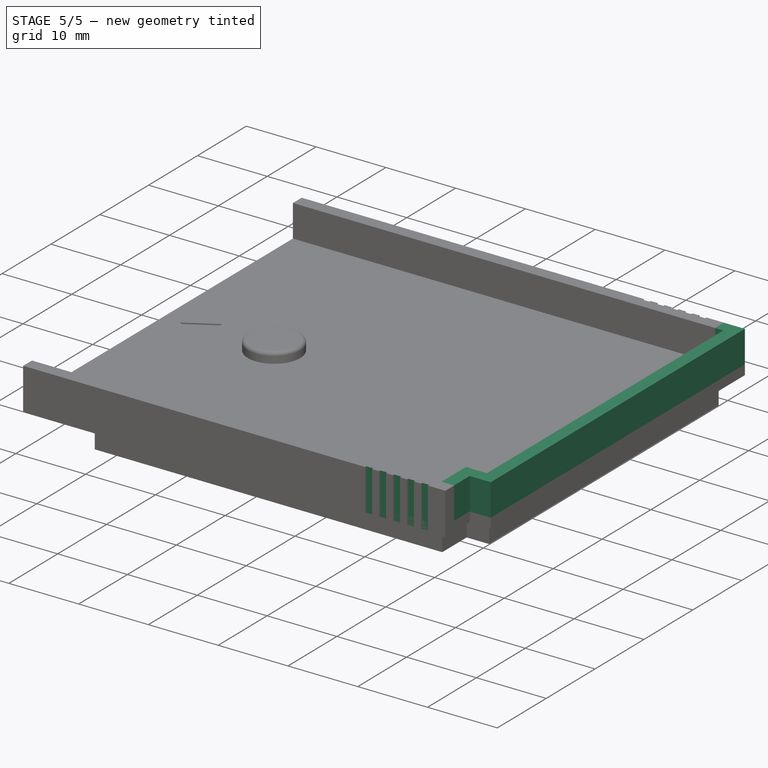
[diagram: stage 5 of 5 — iso view after this stage's code; geometry added in this stage tinted green]
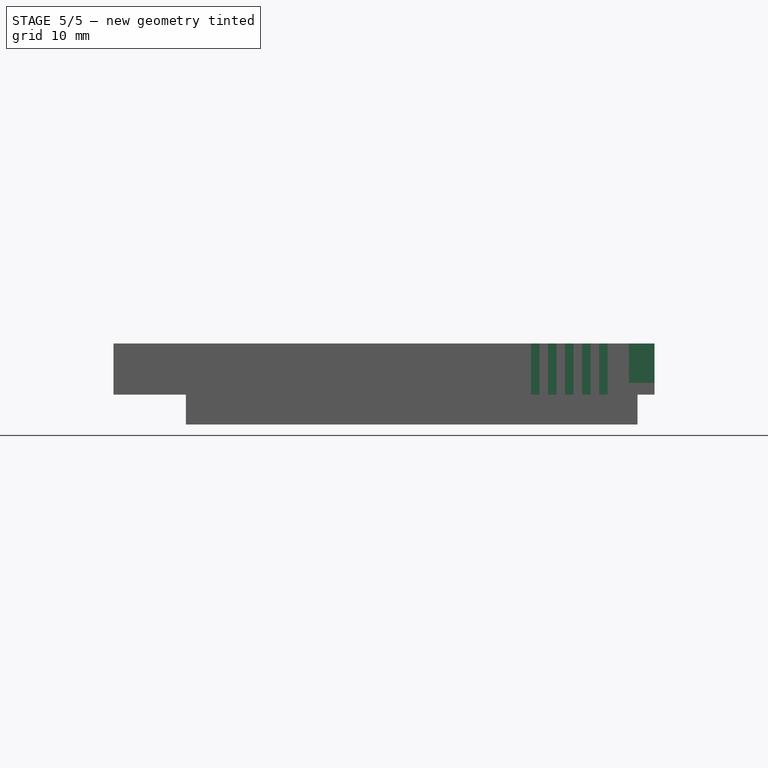
[diagram: stage 5 of 5 — front view after this stage's code; geometry added in this stage tinted green]
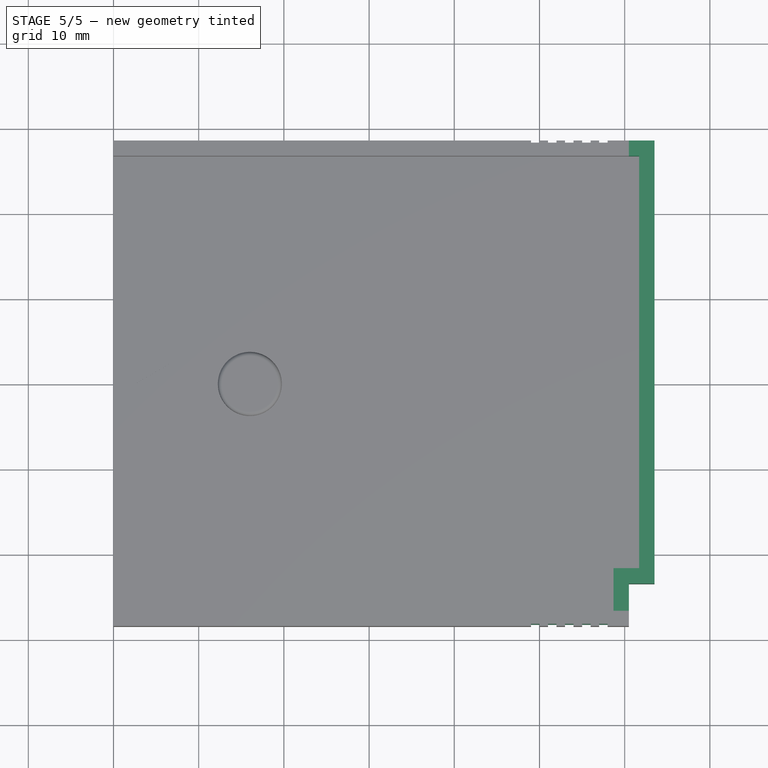
[diagram: stage 5 of 5 — top view after this stage's code; geometry added in this stage tinted green]
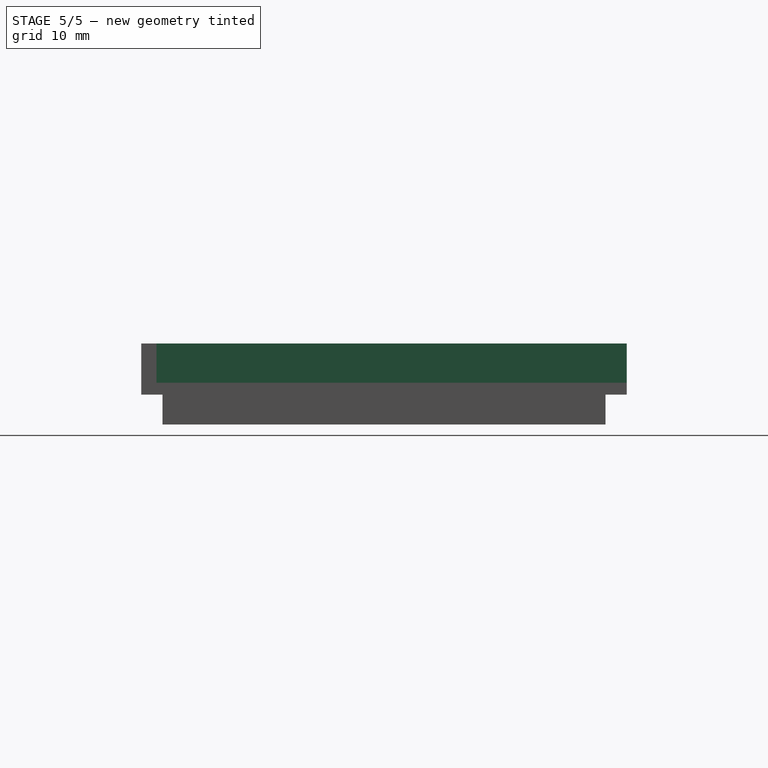
[diagram: stage 5 of 5 — right view after this stage's code; geometry added in this stage tinted green]
FEATURE [Sketcher::SketchObject] Sketch004
  FullyConstrained = true
  MapMode = 5
  Placement = pos=(-4e-16,6e-16,1.4) rot=(0,0,-1;1.5708rad)
  Support = -> [Pad002]
  sketch-geometry (10):
    g0: LineSegment StartX=-28.5 StartY=60.5 StartZ=0 EndX=-28.5 EndY=63.5 EndZ=0
    g1: LineSegment StartX=-28.5 StartY=63.5 StartZ=0 EndX=23.5 EndY=63.5 EndZ=0
    g2: LineSegment StartX=23.5 StartY=63.5 StartZ=0 EndX=23.5 EndY=60.49 EndZ=0
    g3: LineSegment StartX=23.5 StartY=60.49 StartZ=0 EndX=26.7 EndY=60.49 EndZ=0
    g4: LineSegment StartX=26.7 StartY=60.49 StartZ=0 EndX=26.7 EndY=58.69 EndZ=0
    g5: LineSegment StartX=26.7 StartY=58.69 StartZ=0 EndX=21.7 EndY=58.69 EndZ=0
    g6: LineSegment StartX=21.7 StartY=58.69 StartZ=0 EndX=21.7 EndY=61.7 EndZ=0
    g7: LineSegment StartX=21.7 StartY=61.7 StartZ=0 EndX=-26.7 EndY=61.7 EndZ=0
    g8: LineSegment StartX=-26.7 StartY=61.7 StartZ=0 EndX=-26.7 EndY=60.5 EndZ=0
    g9: LineSegment StartX=-26.7 StartY=60.5 StartZ=0 EndX=-28.5 EndY=60.5 EndZ=0
  constraints (30):
    c: Vertical(g0)
    c: Coincident(g0,g1)
    c: Horizontal(g1)
    c: Coincident(g1,g2)
    c: Coincident(g2,g3)
    c: Horizontal(g3)
    c: Coincident(g3,g4)
    c: Coincident(g4,g5)
    c: Coincident(g5,g6)
    c: Coincident(g6,g7)
    c: Horizontal(g7)
    c: Coincident(g7,g8)
    c: Coincident(g8,g9)
    c: Coincident(g9,g0)
    c: Horizontal(g9)
    c: Vertical(g8)
    c: Vertical(g6)
    c: Vertical(g2)
    c: Vertical(g4)
    c: Horizontal(g5)
    c: Equal(g9,g4)
    c: DistanceY(g4,g4) = 1.8
    c: DistanceX(g6,g1) = 1.8
    c: DistanceX(g2,g3) = 3.2
    c: DistanceY(g0,g0) = 3
    c: DistanceX(g0) = -28.5
    c: DistanceY(g0) = 60.5
    c: DistanceY(g7,g0) = 1.8
    c: DistanceY(g6,g6) = 3.01
    c: DistanceX(g1,g1) = 52
FEATURE [PartDesign::Pad] Pad003
  BaseFeature = -> Pad002
  Direction = (-1.4e-15,9e-16,1)
  Length = 4.6
  Length2 = 10
  Placement = pos=(0,0,0) rot=(0.57735,0.57735,0.57735;2.0944rad)
  Profile = -> Sketch004
  ReferenceAxis = -> Sketch004 [N_Axis]
  Type = 0
FEATURE [Sketcher::SketchObject] Sketch005
  FullyConstrained = true
  MapMode = 5
  Placement = pos=(0,0,-1e-16) rot=(0.707107,0.707107,0;3.14159rad)
  Support = -> [Pad003]
  sketch-geometry (1):
    g0: Circle CenterX=0 CenterY=16 CenterZ=0 NormalX=0 NormalY=0 NormalZ=1 AngleXU=0 Radius=2.5
  constraints (3):
    c: PointOnObject(g0,g-2)
    c: DistanceY(g-1,g0) = 16
    c: Radius(g0) = 2.5
FEATURE [PartDesign::Pocket] Pocket001
  BaseFeature = -> Pad003
  Direction = (-1.7e-15,1e-15,1)
  Length = 2
  Length2 = 5
  Placement = pos=(0,0,0) rot=(0.57735,0.57735,0.57735;2.0944rad)
  Profile = -> Sketch005
  ReferenceAxis = -> Sketch005 [N_Axis]
  Type = 0
FEATURE [Sketcher::SketchObject] Sketch011
  FullyConstrained = true
  MapMode = 5
  Placement = pos=(0,0,-1e-16) rot=(0.707107,0.707107,0;3.14159rad)
  Support = -> [Pocket001]
  sketch-geometry (41):
    g0: LineSegment StartX=-30.25 StartY=58 StartZ=0 EndX=-28.25 EndY=58 EndZ=0
    g1: LineSegment StartX=-28.25 StartY=58 StartZ=0 EndX=-28.25 EndY=57 EndZ=0
    g2: LineSegment StartX=-28.25 StartY=57 StartZ=0 EndX=-29.25 EndY=57 EndZ=0
    g3: LineSegment StartX=-29.25 StartY=57 StartZ=0 EndX=-29.25 EndY=56 EndZ=0
    g4: LineSegment StartX=-29.25 StartY=56 StartZ=0 EndX=-28.25 EndY=56 EndZ=0
    g5: LineSegment StartX=-28.25 StartY=56 StartZ=0 EndX=-28.25 EndY=55 EndZ=0
    g6: LineSegment StartX=-28.25 StartY=55 StartZ=0 EndX=-29.25 EndY=55 EndZ=0
    g7: LineSegment StartX=-29.25 StartY=55 StartZ=0 EndX=-29.25 EndY=54 EndZ=0
    g8: LineSegment StartX=-29.25 StartY=54 StartZ=0 EndX=-28.25 EndY=54 EndZ=0
    g9: LineSegment StartX=-28.25 StartY=54 StartZ=0 EndX=-28.25 EndY=53 EndZ=0
    g10: LineSegment StartX=-28.25 StartY=53 StartZ=0 EndX=-29.25 EndY=53 EndZ=0
    g11: LineSegment StartX=-29.25 StartY=53 StartZ=0 EndX=-29.25 EndY=52 EndZ=0
    g12: LineSegment StartX=-29.25 StartY=52 StartZ=0 EndX=-28.25 EndY=52 EndZ=0
    g13: LineSegment StartX=-28.25 StartY=52 StartZ=0 EndX=-28.25 EndY=51 EndZ=0
    g14: LineSegment StartX=-28.25 StartY=51 StartZ=0 EndX=-29.25 EndY=51 EndZ=0
    g15: LineSegment StartX=-29.25 StartY=51 StartZ=0 EndX=-29.25 EndY=50 EndZ=0
    g16: LineSegment StartX=-29.25 StartY=50 StartZ=0 EndX=-28.25 EndY=50 EndZ=0
    g17: LineSegment StartX=-28.25 StartY=50 StartZ=0 EndX=-28.25 EndY=49 EndZ=0
    g18: LineSegment StartX=-28.25 StartY=49 StartZ=0 EndX=-30.25 EndY=49 EndZ=0
    g19: LineSegment StartX=-30.25 StartY=49 StartZ=0 EndX=-30.25 EndY=58 EndZ=0
    g20: LineSegment StartX=31.25 StartY=58 StartZ=0 EndX=28.25 EndY=58 EndZ=0
    g21: LineSegment StartX=28.25 StartY=58 StartZ=0 EndX=28.25 EndY=57 EndZ=0
    g22: LineSegment StartX=28.25 StartY=57 StartZ=0 EndX=30.25 EndY=57 EndZ=0
    g23: LineSegment StartX=30.25 StartY=57 StartZ=0 EndX=30.25 EndY=56 EndZ=0
    g24: LineSegment StartX=30.25 StartY=56 StartZ=0 EndX=28.25 EndY=56 EndZ=0
    g25: LineSegment StartX=28.25 StartY=56 StartZ=0 EndX=28.25 EndY=55 EndZ=0
    g26: LineSegment StartX=28.25 StartY=55 StartZ=0 EndX=30.25 EndY=55 EndZ=0
    g27: LineSegment StartX=30.25 StartY=55 StartZ=0 EndX=30.25 EndY=54 EndZ=0
    g28: LineSegment StartX=30.25 StartY=54 StartZ=0 EndX=28.25 EndY=54 EndZ=0
    g29: LineSegment StartX=28.25 StartY=54 StartZ=0 EndX=28.25 EndY=53 EndZ=0
    g30: LineSegment StartX=28.25 StartY=53 StartZ=0 EndX=30.25 EndY=53 EndZ=0
    g31: LineSegment StartX=30.25 StartY=53 StartZ=0 EndX=30.25 EndY=52 EndZ=0
    g32: LineSegment StartX=30.25 StartY=52 StartZ=0 EndX=28.25 EndY=52 EndZ=0
    g33: LineSegment StartX=28.25 StartY=52 StartZ=0 EndX=28.25 EndY=51 EndZ=0
    g34: LineSegment StartX=28.25 StartY=51 StartZ=0 EndX=30.25 EndY=51 EndZ=0
    g35: LineSegment StartX=30.25 StartY=51 StartZ=0 EndX=30.25 EndY=50 EndZ=0
    g36: LineSegment StartX=30.25 StartY=50 StartZ=0 EndX=28.25 EndY=50 EndZ=0
    g37: LineSegment StartX=28.25 StartY=50 StartZ=0 EndX=28.25 EndY=49 EndZ=0
    g38: LineSegment StartX=28.25 StartY=49 StartZ=0 EndX=31.25 EndY=49 EndZ=0
    g39: LineSegment StartX=31.25 StartY=49 StartZ=0 EndX=31.25 EndY=58 EndZ=0
    g40: LineSegment StartX=-28.25 StartY=58 StartZ=0 EndX=28.25 EndY=58 EndZ=0
  constraints (121):
    c: Horizontal(g0)
    c: Coincident(g0,g1)
    c: Coincident(g1,g2)
    c: Horizontal(g2)
    c: Coincident(g2,g3)
    c: Vertical(g3)
    c: Coincident(g3,g4)
    c: Horizontal(g4)
    c: Coincident(g4,g5)
    c: Coincident(g5,g6)
    c: Horizontal(g6)
    c: Coincident(g6,g7)
    c: Vertical(g7)
    c: Coincident(g7,g8)
    c: Horizontal(g8)
    c: Coincident(g8,g9)
    c: Coincident(g9,g10)
    c: Horizontal(g10)
    c: Coincident(g10,g11)
    c: Vertical(g11)
    c: Coincident(g11,g12)
    c: Horizontal(g12)
    c: Coincident(g12,g13)
    c: Coincident(g13,g14)
    c: Horizontal(g14)
    c: Coincident(g14,g15)
    c: Vertical(g15)
    c: Coincident(g15,g16)
    c: Horizontal(g16)
    c: Coincident(g16,g17)
    c: Vertical(g17)
    c: Coincident(g17,g18)
    c: Horizontal(g18)
    c: Coincident(g18,g19)
    c: Vertical(g19)
    c: Coincident(g0,g19)
    c: Vertical(g1)
    c: Vertical(g5)
    c: Vertical(g9)
    c: Vertical(g13)
    c: Equal(g7,g11)
    c: Equal(g11,g15)
    c: Equal(g15,g17)
    c: Equal(g17,g13)
    c: Equal(g13,g9)
    c: Equal(g9,g5)
    c: Equal(g5,g3)
    c: Equal(g3,g1)
    c: Equal(g2,g4)
    c: Equal(g4,g6)
    c: Equal(g6,g8)
    c: Equal(g8,g10)
    c: Equal(g10,g12)
    c: Equal(g12,g14)
    c: Equal(g14,g16)
    c: DistanceY(g1,g1) = 1
    c: DistanceX(g18,g18) = 2
    c: DistanceX(g0,g2) = 1
    c: Horizontal(g20)
    c: Coincident(g20,g21)
    c: Vertical(g21)
    c: Coincident(g21,g22)
    c: Horizontal(g22)
    c: Coincident(g22,g23)
    c: Vertical(g23)
    c: Coincident(g23,g24)
    c: Horizontal(g24)
    c: Coincident(g24,g25)
    c: Vertical(g25)
    c: Coincident(g25,g26)
    c: Horizontal(g26)
    c: Coincident(g26,g27)
    c: Vertical(g27)
    c: Coincident(g27,g28)
    c: Horizontal(g28)
    c: Coincident(g28,g29)
    c: Vertical(g29)
    c: Coincident(g29,g30)
    c: Horizontal(g30)
    c: Coincident(g30,g31)
    c: Vertical(g31)
    c: Coincident(g31,g32)
    c: Horizontal(g32)
    c: Coincident(g32,g33)
    c: Vertical(g33)
    c: Coincident(g33,g34)
    c: Horizontal(g34)
    c: Coincident(g34,g35)
    c: Vertical(g35)
    c: Coincident(g35,g36)
    c: Horizontal(g36)
    c: Coincident(g36,g37)
    c: Vertical(g37)
    c: Coincident(g37,g38)
    c: Horizontal(g38)
    c: Coincident(g38,g39)
    c: Vertical(g39)
    c: Coincident(g20,g39)
    c: Equal(g37,g35)
    c: Equal(g35,g33)
    c: Equal(g33,g31)
    c: Equal(g31,g29)
    c: Equal(g29,g27)
    c: Equal(g27,g25)
    c: Equal(g25,g23)
    c: Equal(g23,g21)
    c: DistanceY(g21,g21) = 1
    c: Equal(g22,g26)
    c: Equal(g26,g30)
    c: Equal(g30,g34)
    c: DistanceX(g38,g38) = 3
    c: Equal(g36,g34)
    c: Equal(g34,g28)
    c: Equal(g28,g24)
    c: Equal(g32,g30)
    c: DistanceX(g22,g20) = 1
    c: Coincident(g40,g0)
    c: Coincident(g40,g20)
    c: Symmetric(g0,g20,g-2)
    c: DistanceX(g40,g40) = 56.5
    c: DistanceY(g-1,g0) = 58
FEATURE [PartDesign::Pocket] Pocket004
  BaseFeature = -> Pocket001
  Direction = (-2.1e-15,1.1e-15,1)
  Length = 6
  Length2 = 5
  Placement = pos=(0,0,0) rot=(0.57735,0.57735,0.57735;2.0944rad)
  Profile = -> Sketch011
  ReferenceAxis = -> Sketch011 [N_Axis]
  Type = 0
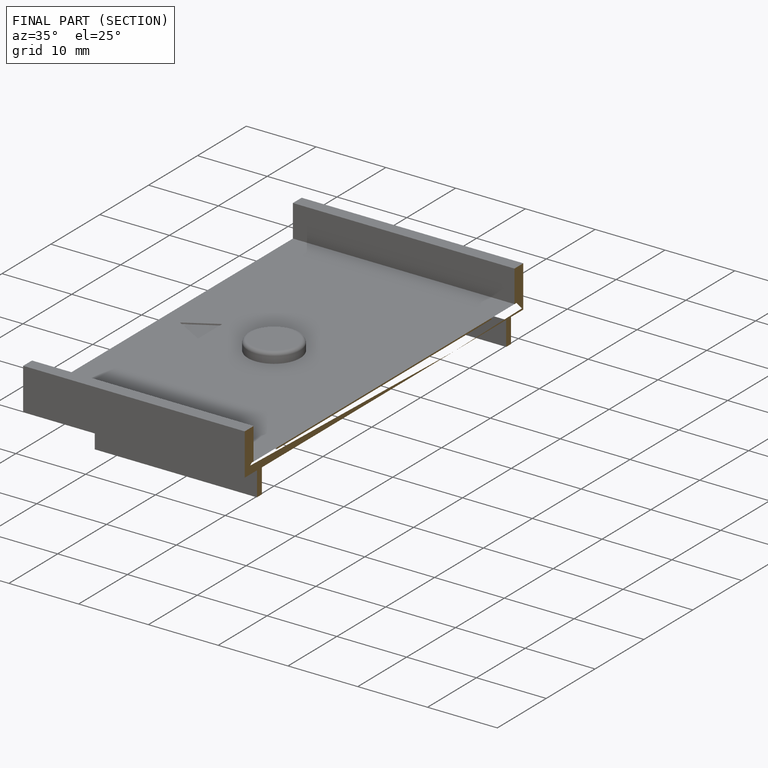
[diagram: finished part — half-section view (interior)]
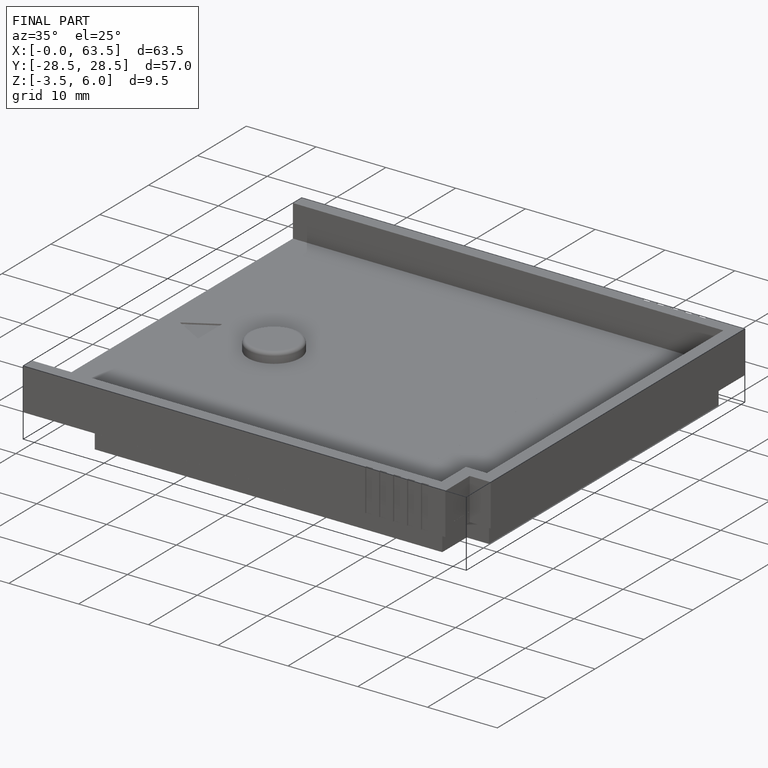
[diagram: finished part — iso view with bounding-box wireframe]
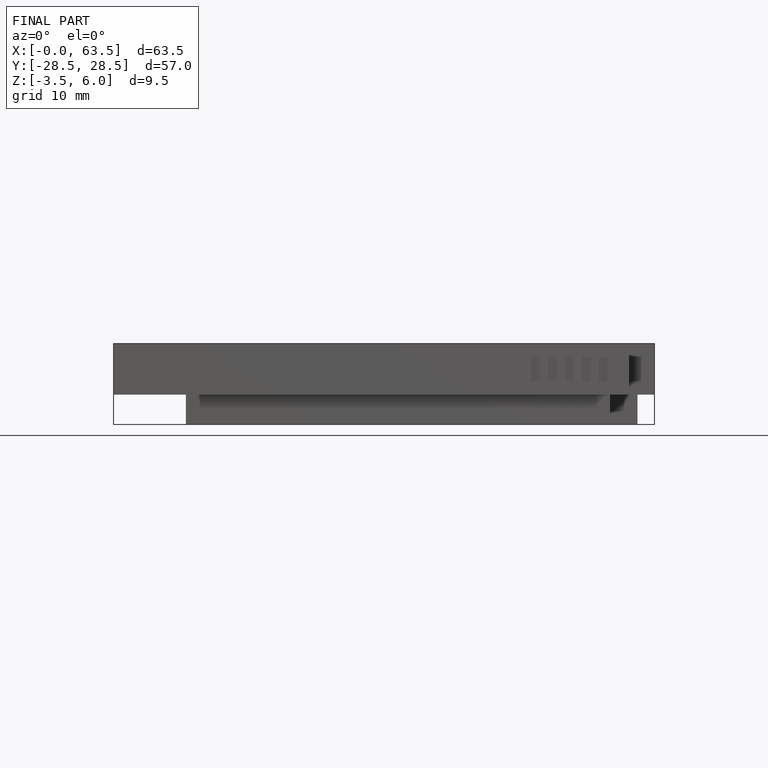
[diagram: finished part — front view with bounding-box wireframe]
